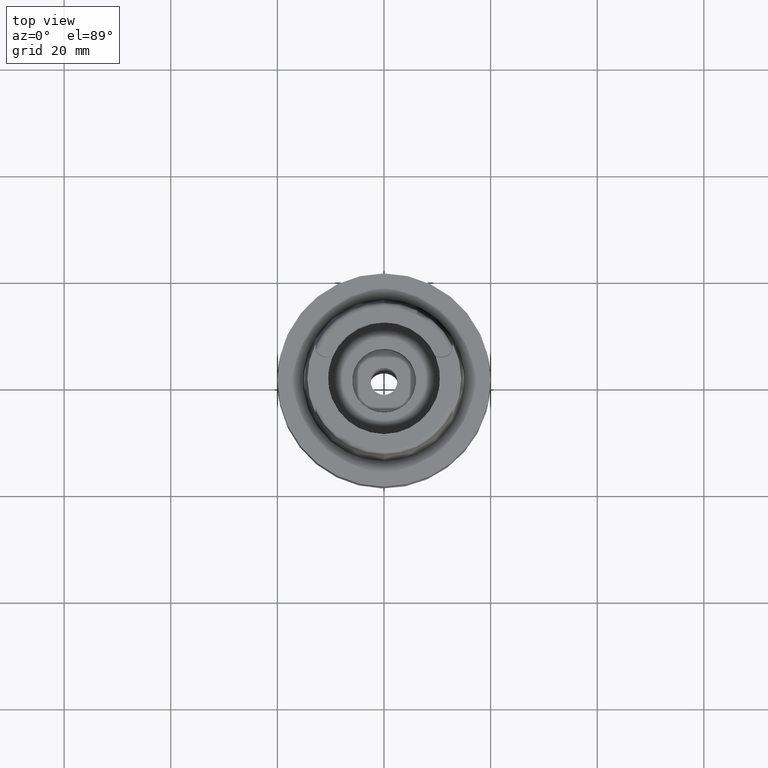
[diagram: clean part render]
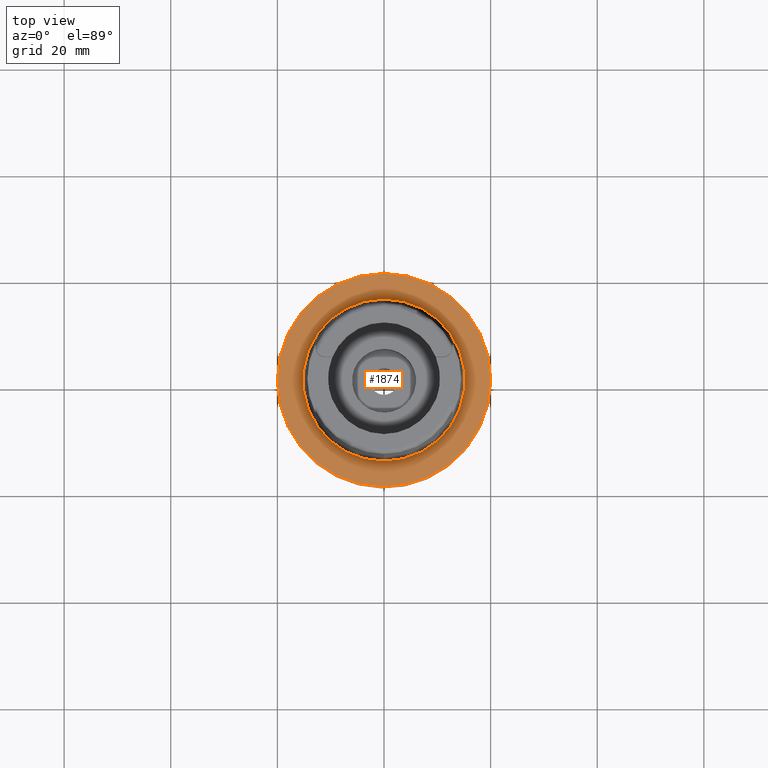
[diagram: same view with one face highlighted and labeled with its STEP entity id]
A machine part, top view. The second image highlights one B-rep face of the part: STEP entity #1874.
In plain terms, the highlighted planar face has unit normal (0, 0, -1).
Its self-contained STEP definition (entity closure, byte-faithful):
#6 = CARTESIAN_POINT ( 'NONE',  ( 0.0000000000000000000, 1.224646799146999965E-14, 0.0000000000000000000 ) ) ;
#36 = CARTESIAN_POINT ( 'NONE',  ( 0.0000000000000000000, 1.342457523729000028E-14, 0.0000000000000000000 ) ) ;
#115 = CARTESIAN_POINT ( 'NONE',  ( 0.0000000000000000000, 1.342457523729000028E-14, 0.0000000000000000000 ) ) ;
#252 = EDGE_CURVE ( 'NONE', #2816, #3621, #4298, .T. ) ;
#470 = CIRCLE ( 'NONE', #3428, 15.20000663301000010 ) ;
#548 = DIRECTION ( 'NONE',  ( 0.0000000000000000000, 0.0000000000000000000, -1.000000000000000000 ) ) ;
#574 = DIRECTION ( 'NONE',  ( 0.0000000000000000000, 1.000000000000000000, 0.0000000000000000000 ) ) ;
#597 = VERTEX_POINT ( 'NONE', #4442 ) ;
#814 = CARTESIAN_POINT ( 'NONE',  ( 0.0000000000000000000, 1.543667290324999758E-14, 4.263256414560999963E-14 ) ) ;
#829 = ORIENTED_EDGE ( 'NONE', *, *, #252, .F. ) ;
#872 = CIRCLE ( 'NONE', #2649, 20.00000000000000000 ) ;
#1122 = CIRCLE ( 'NONE', #4661, 15.20000663301000010 ) ;
#1176 = CARTESIAN_POINT ( 'NONE',  ( 0.0000000000000000000, -20.00000000000000000, 4.263256414560999963E-14 ) ) ;
#1327 = DIRECTION ( 'NONE',  ( 0.0000000000000000000, 1.000000000000000000, 0.0000000000000000000 ) ) ;
#1419 = CARTESIAN_POINT ( 'NONE',  ( 0.0000000000000000000, 1.543667290324999758E-14, 4.263256414560999963E-14 ) ) ;
#1593 = DIRECTION ( 'NONE',  ( 0.0000000000000000000, 0.0000000000000000000, -1.000000000000000000 ) ) ;
#1786 = EDGE_CURVE ( 'NONE', #3621, #2816, #872, .T. ) ;
#1815 = ORIENTED_EDGE ( 'NONE', *, *, #4705, .F. ) ;
#1874 = ADVANCED_FACE ( 'NONE', ( #4459, #2052 ), #2466, .F. ) ;
#2041 = DIRECTION ( 'NONE',  ( 0.0000000000000000000, -1.000000000000000000, 0.0000000000000000000 ) ) ;
#2052 = FACE_BOUND ( 'NONE', #5139, .T. ) ;
#2385 = DIRECTION ( 'NONE',  ( 0.0000000000000000000, -1.000000000000000000, 0.0000000000000000000 ) ) ;
#2429 = DIRECTION ( 'NONE',  ( 0.0000000000000000000, 0.0000000000000000000, -1.000000000000000000 ) ) ;
#2466 = PLANE ( 'NONE',  #5008 ) ;
#2550 = DIRECTION ( 'NONE',  ( 0.0000000000000000000, 0.0000000000000000000, 1.000000000000000000 ) ) ;
#2553 = CARTESIAN_POINT ( 'NONE',  ( 0.0000000000000000000, 20.00000000000000000, 2.842170943039999687E-14 ) ) ;
#2605 = ORIENTED_EDGE ( 'NONE', *, *, #4172, .F. ) ;
#2649 = AXIS2_PLACEMENT_3D ( 'NONE', #814, #2429, #2041 ) ;
#2726 = CARTESIAN_POINT ( 'NONE',  ( 0.0000000000000000000, 15.20000663301000010, 0.0000000000000000000 ) ) ;
#2729 = EDGE_LOOP ( 'NONE', ( #829, #3283 ) ) ;
#2816 = VERTEX_POINT ( 'NONE', #2553 ) ;
#2886 = DIRECTION ( 'NONE',  ( 0.0000000000000000000, 0.0000000000000000000, 1.000000000000000000 ) ) ;
#3283 = ORIENTED_EDGE ( 'NONE', *, *, #1786, .F. ) ;
#3297 = AXIS2_PLACEMENT_3D ( 'NONE', #1419, #548, #574 ) ;
#3375 = DIRECTION ( 'NONE',  ( 0.0000000000000000000, -1.000000000000000000, 0.0000000000000000000 ) ) ;
#3428 = AXIS2_PLACEMENT_3D ( 'NONE', #36, #2886, #1327 ) ;
#3621 = VERTEX_POINT ( 'NONE', #1176 ) ;
#4172 = EDGE_CURVE ( 'NONE', #4991, #597, #470, .T. ) ;
#4298 = CIRCLE ( 'NONE', #3297, 20.00000000000000000 ) ;
#4442 = CARTESIAN_POINT ( 'NONE',  ( 0.0000000000000000000, -15.20000663301000010, 1.136868377215999875E-13 ) ) ;
#4459 = FACE_OUTER_BOUND ( 'NONE', #2729, .T. ) ;
#4661 = AXIS2_PLACEMENT_3D ( 'NONE', #115, #2550, #3375 ) ;
#4705 = EDGE_CURVE ( 'NONE', #597, #4991, #1122, .T. ) ;
#4991 = VERTEX_POINT ( 'NONE', #2726 ) ;
#5008 = AXIS2_PLACEMENT_3D ( 'NONE', #6, #1593, #2385 ) ;
#5139 = EDGE_LOOP ( 'NONE', ( #2605, #1815 ) ) ;